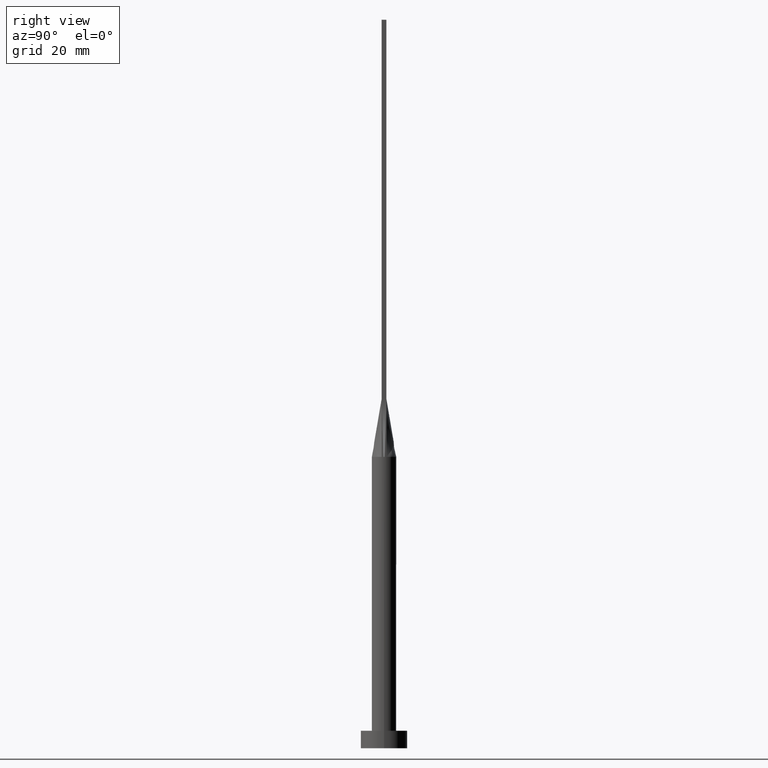
[diagram: clean part render]
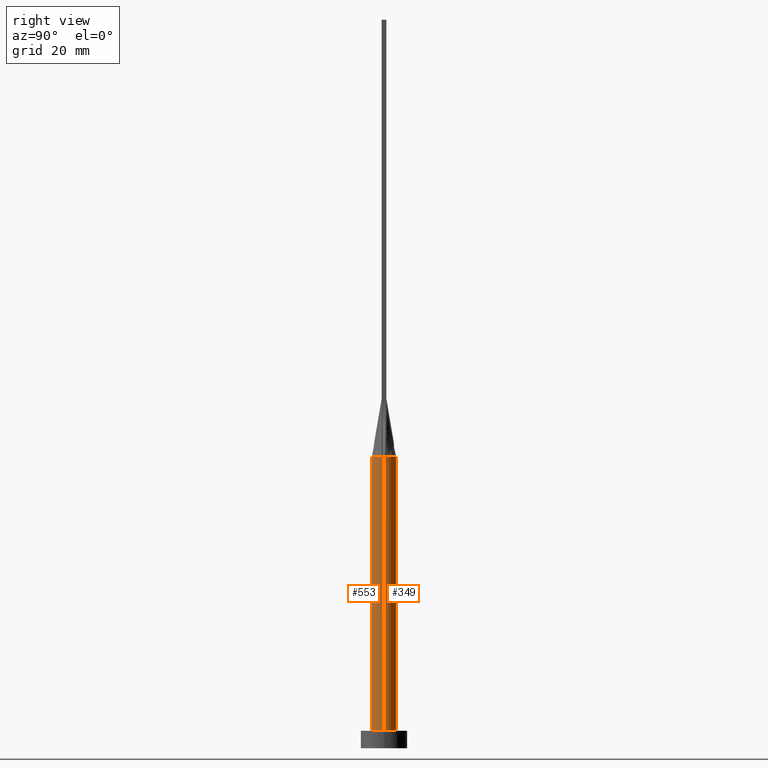
[diagram: same view with one multi-face feature highlighted, each face labeled with its STEP entity id]
A machine part, right view. The highlighted faces form ONE feature: a constant-radius fillet chain: 2 tangent blend faces with common blend radius 2.1 mm. The faces share edges in the B-rep.
Their STEP definitions:
[1] entity #553 (Cylinder):
#6 = AXIS2_PLACEMENT_3D ( 'NONE', #504, #7, #67 ) ;
#7 = DIRECTION ( 'NONE',  ( 0.000000000000000000, 0.000000000000000000, 1.000000000000000000 ) ) ;
#29 = EDGE_LOOP ( 'NONE', ( #336, #305, #171, #33, #296, #394 ) ) ;
#33 = ORIENTED_EDGE ( 'NONE', *, *, #303, .F. ) ;
#34 = VERTEX_POINT ( 'NONE', #269 ) ;
#42 = CARTESIAN_POINT ( 'NONE',  ( 2.099758441344840243, 4.928843353830161703E-16, 50.00000000000000000 ) ) ;
#67 = DIRECTION ( 'NONE',  ( 1.000000000000000000, 0.000000000000000000, 0.000000000000000000 ) ) ;
#68 = CARTESIAN_POINT ( 'NONE',  ( 2.100000000000000089, 2.571758278209441957E-16, 50.00000000000000000 ) ) ;
#102 = DIRECTION ( 'NONE',  ( -0.000000000000000000, -0.000000000000000000, -1.000000000000000000 ) ) ;
#119 = EDGE_CURVE ( 'NONE', #388, #436, #477, .T. ) ;
#126 = DIRECTION ( 'NONE',  ( 0.000000000000000000, 0.000000000000000000, 1.000000000000000000 ) ) ;
#131 = AXIS2_PLACEMENT_3D ( 'NONE', #264, #228, #186 ) ;
#137 = LINE ( 'NONE', #140, #398 ) ;
#140 = CARTESIAN_POINT ( 'NONE',  ( -2.100000000000000089, 0.000000000000000000, 50.00000000000000000 ) ) ;
#165 = VERTEX_POINT ( 'NONE', #230 ) ;
#171 = ORIENTED_EDGE ( 'NONE', *, *, #419, .F. ) ;
#186 = DIRECTION ( 'NONE',  ( 1.000000000000000000, 0.000000000000000000, 0.000000000000000000 ) ) ;
#211 = DIRECTION ( 'NONE',  ( 1.000000000000000000, -8.881784197001252323E-16, 0.000000000000000000 ) ) ;
#219 = DIRECTION ( 'NONE',  ( 1.000000000000000000, 0.000000000000000000, 0.000000000000000000 ) ) ;
#228 = DIRECTION ( 'NONE',  ( 0.000000000000000000, 0.000000000000000000, 1.000000000000000000 ) ) ;
#230 = CARTESIAN_POINT ( 'NONE',  ( -2.100000000000000089, 0.000000000000000000, 3.000000000000000000 ) ) ;
#245 = CARTESIAN_POINT ( 'NONE',  ( 2.055161022591414977, -0.4326655822303633325, 50.00000000000000000 ) ) ;
#264 = CARTESIAN_POINT ( 'NONE',  ( 0.000000000000000000, 0.000000000000000000, 50.00000000000000000 ) ) ;
#269 = CARTESIAN_POINT ( 'NONE',  ( -2.055145036631130129, -0.4326623253166036465, 50.00000000000000000 ) ) ;
#270 = VERTEX_POINT ( 'NONE', #512 ) ;
#272 = CIRCLE ( 'NONE', #131, 2.100000000000000089 ) ;
#282 = VECTOR ( 'NONE', #102, 1000.000000000000000 ) ;
#296 = ORIENTED_EDGE ( 'NONE', *, *, #392, .T. ) ;
#303 = EDGE_CURVE ( 'NONE', #270, #34, #319, .T. ) ;
#305 = ORIENTED_EDGE ( 'NONE', *, *, #557, .F. ) ;
#309 = VERTEX_POINT ( 'NONE', #245 ) ;
#318 = DIRECTION ( 'NONE',  ( -0.000000000000000000, -0.000000000000000000, -1.000000000000000000 ) ) ;
#319 = CIRCLE ( 'NONE', #6, 2.100000000000000089 ) ;
#336 = ORIENTED_EDGE ( 'NONE', *, *, #119, .F. ) ;
#340 = EDGE_CURVE ( 'NONE', #165, #436, #361, .T. ) ;
#341 = DIRECTION ( 'NONE',  ( -0.000000000000000000, -0.000000000000000000, -1.000000000000000000 ) ) ;
#357 = CARTESIAN_POINT ( 'NONE',  ( 0.000000000000000000, 0.000000000000000000, 50.00000000000000000 ) ) ;
#361 = CIRCLE ( 'NONE', #544, 2.100000000000000089 ) ;
#388 = VERTEX_POINT ( 'NONE', #42 ) ;
#392 = EDGE_CURVE ( 'NONE', #270, #165, #137, .T. ) ;
#394 = ORIENTED_EDGE ( 'NONE', *, *, #340, .T. ) ;
#398 = VECTOR ( 'NONE', #318, 1000.000000000000000 ) ;
#419 = EDGE_CURVE ( 'NONE', #34, #309, #272, .T. ) ;
#436 = VERTEX_POINT ( 'NONE', #530 ) ;
#445 = CYLINDRICAL_SURFACE ( 'NONE', #533, 2.100000000000000089 ) ;
#477 = LINE ( 'NONE', #68, #282 ) ;
#481 = AXIS2_PLACEMENT_3D ( 'NONE', #357, #126, #211 ) ;
#492 = CARTESIAN_POINT ( 'NONE',  ( 0.000000000000000000, 0.000000000000000000, 3.000000000000000000 ) ) ;
#501 = CIRCLE ( 'NONE', #481, 2.100000000000000089 ) ;
#504 = CARTESIAN_POINT ( 'NONE',  ( 0.000000000000000000, 0.000000000000000000, 50.00000000000000000 ) ) ;
#512 = CARTESIAN_POINT ( 'NONE',  ( -2.099758441344840243, -1.448674240509545331E-15, 50.00000000000000000 ) ) ;
#530 = CARTESIAN_POINT ( 'NONE',  ( 2.100000000000000089, 2.571758278209441957E-16, 3.000000000000000000 ) ) ;
#533 = AXIS2_PLACEMENT_3D ( 'NONE', #581, #341, #570 ) ;
#544 = AXIS2_PLACEMENT_3D ( 'NONE', #492, #572, #219 ) ;
#553 = ADVANCED_FACE ( 'NONE', ( #565 ), #445, .T. ) ;
#557 = EDGE_CURVE ( 'NONE', #309, #388, #501, .T. ) ;
#565 = FACE_OUTER_BOUND ( 'NONE', #29, .T. ) ;
#570 = DIRECTION ( 'NONE',  ( -1.000000000000000000, 0.000000000000000000, 0.000000000000000000 ) ) ;
#572 = DIRECTION ( 'NONE',  ( 0.000000000000000000, 0.000000000000000000, 1.000000000000000000 ) ) ;
#581 = CARTESIAN_POINT ( 'NONE',  ( 0.000000000000000000, 0.000000000000000000, 50.00000000000000000 ) ) ;
[2] entity #349 (Cylinder):
#14 = EDGE_CURVE ( 'NONE', #24, #270, #248, .T. ) ;
#24 = VERTEX_POINT ( 'NONE', #536 ) ;
#41 = ORIENTED_EDGE ( 'NONE', *, *, #554, .F. ) ;
#42 = CARTESIAN_POINT ( 'NONE',  ( 2.099758441344840243, 4.928843353830161703E-16, 50.00000000000000000 ) ) ;
#47 = ORIENTED_EDGE ( 'NONE', *, *, #119, .T. ) ;
#48 = CARTESIAN_POINT ( 'NONE',  ( 1.069497409764671003, 1.827724181718572538, 50.00000000000000711 ) ) ;
#54 = AXIS2_PLACEMENT_3D ( 'NONE', #549, #463, #506 ) ;
#68 = CARTESIAN_POINT ( 'NONE',  ( 2.100000000000000089, 2.571758278209441957E-16, 50.00000000000000000 ) ) ;
#73 = EDGE_CURVE ( 'NONE', #436, #165, #308, .T. ) ;
#90 = CARTESIAN_POINT ( 'NONE',  ( -1.769939800381045147, 1.149026496286139842, 50.00000000000000711 ) ) ;
#92 = DIRECTION ( 'NONE',  ( 1.000000000000000000, 0.000000000000000000, 0.000000000000000000 ) ) ;
#102 = DIRECTION ( 'NONE',  ( -0.000000000000000000, -0.000000000000000000, -1.000000000000000000 ) ) ;
#111 = CARTESIAN_POINT ( 'NONE',  ( 0.000000000000000000, 0.000000000000000000, 50.00000000000000000 ) ) ;
#119 = EDGE_CURVE ( 'NONE', #388, #436, #477, .T. ) ;
#133 = CYLINDRICAL_SURFACE ( 'NONE', #283, 2.100000000000000089 ) ;
#135 = DIRECTION ( 'NONE',  ( 1.000000000000000000, 0.000000000000000000, 0.000000000000000000 ) ) ;
#137 = LINE ( 'NONE', #140, #398 ) ;
#138 = CARTESIAN_POINT ( 'NONE',  ( 0.000000000000000000, 0.000000000000000000, 50.00000000000000000 ) ) ;
#140 = CARTESIAN_POINT ( 'NONE',  ( -2.100000000000000089, 0.000000000000000000, 50.00000000000000000 ) ) ;
#145 = CARTESIAN_POINT ( 'NONE',  ( -0.2839879338753505955, 2.100000000000000533, 50.00000000000000711 ) ) ;
#165 = VERTEX_POINT ( 'NONE', #230 ) ;
#167 = AXIS2_PLACEMENT_3D ( 'NONE', #138, #576, #92 ) ;
#168 = VERTEX_POINT ( 'NONE', #194 ) ;
#182 = CARTESIAN_POINT ( 'NONE',  ( -1.069497409764671003, 1.827724181718571872, 50.00000000000000711 ) ) ;
#194 = CARTESIAN_POINT ( 'NONE',  ( 2.055132260641998609, 0.4326595789354660826, 50.00000000000000000 ) ) ;
#216 = CARTESIAN_POINT ( 'NONE',  ( 0.000000000000000000, 0.000000000000000000, 50.00000000000000000 ) ) ;
#222 = ORIENTED_EDGE ( 'NONE', *, *, #14, .F. ) ;
#226 = CARTESIAN_POINT ( 'NONE',  ( 0.5670887265440297531, 2.040296735810463780, 50.00000000000000711 ) ) ;
#230 = CARTESIAN_POINT ( 'NONE',  ( -2.100000000000000089, 0.000000000000000000, 3.000000000000000000 ) ) ;
#240 = CIRCLE ( 'NONE', #167, 2.100000000000000089 ) ;
#248 = CIRCLE ( 'NONE', #300, 2.100000000000000089 ) ;
#266 = DIRECTION ( 'NONE',  ( 0.000000000000000000, 0.000000000000000000, 1.000000000000000000 ) ) ;
#270 = VERTEX_POINT ( 'NONE', #512 ) ;
#282 = VECTOR ( 'NONE', #102, 1000.000000000000000 ) ;
#283 = AXIS2_PLACEMENT_3D ( 'NONE', #216, #310, #575 ) ;
#300 = AXIS2_PLACEMENT_3D ( 'NONE', #111, #266, #135 ) ;
#308 = CIRCLE ( 'NONE', #54, 2.100000000000000089 ) ;
#310 = DIRECTION ( 'NONE',  ( -0.000000000000000000, -0.000000000000000000, -1.000000000000000000 ) ) ;
#313 = CARTESIAN_POINT ( 'NONE',  ( 1.288188016604684183, 1.676316068528189041, 50.00000000000000711 ) ) ;
#316 = CARTESIAN_POINT ( 'NONE',  ( 1.960396204527856900, 0.7808940436533436946, 50.00000000000000711 ) ) ;
#318 = DIRECTION ( 'NONE',  ( -0.000000000000000000, -0.000000000000000000, -1.000000000000000000 ) ) ;
#335 = ORIENTED_EDGE ( 'NONE', *, *, #371, .F. ) ;
#337 = ORIENTED_EDGE ( 'NONE', *, *, #73, .T. ) ;
#348 = CARTESIAN_POINT ( 'NONE',  ( 1.638039177766652754, 1.336522195786985057, 50.00000000000002132 ) ) ;
#349 = ADVANCED_FACE ( 'NONE', ( #400 ), #133, .T. ) ;
#356 = CARTESIAN_POINT ( 'NONE',  ( -1.288188016604684183, 1.676316068528189263, 50.00000000000002132 ) ) ;
#358 = CARTESIAN_POINT ( 'NONE',  ( -0.5670887265440298641, 2.040296735810464668, 50.00000000000000000 ) ) ;
#371 = EDGE_CURVE ( 'NONE', #168, #24, #431, .T. ) ;
#388 = VERTEX_POINT ( 'NONE', #42 ) ;
#392 = EDGE_CURVE ( 'NONE', #270, #165, #137, .T. ) ;
#398 = VECTOR ( 'NONE', #318, 1000.000000000000000 ) ;
#399 = ORIENTED_EDGE ( 'NONE', *, *, #392, .F. ) ;
#400 = FACE_OUTER_BOUND ( 'NONE', #539, .T. ) ;
#403 = CARTESIAN_POINT ( 'NONE',  ( -2.055148177435248691, 0.4326628259079252081, 50.00000000000000000 ) ) ;
#405 = CARTESIAN_POINT ( 'NONE',  ( 1.769939800381044259, 1.149026496286139620, 49.99999999999999289 ) ) ;
#431 = B_SPLINE_CURVE_WITH_KNOTS ( 'NONE', 3,
 ( #534, #499, #316, #405, #348, #313, #48, #226, #580, #145, #358, #182, #356, #495, #90, #456, #444, #403 ),
 .UNSPECIFIED., .F., .F.,
 ( 4, 2, 2, 2, 2, 2, 2, 2, 4 ),
 ( 0.000000000000000000, 0.1250000000000000000, 0.2500000000000000000, 0.3750000000000000000, 0.5000000000000000000, 0.6250000000000000000, 0.7500000000000000000, 0.8750000000000000000, 1.000000000000000000 ),
 .UNSPECIFIED. ) ;
#436 = VERTEX_POINT ( 'NONE', #530 ) ;
#444 = CARTESIAN_POINT ( 'NONE',  ( -2.019676033883313959, 0.6001949545017503107, 50.00000000000000711 ) ) ;
#456 = CARTESIAN_POINT ( 'NONE',  ( -1.960396204527856456, 0.7808940436533434726, 50.00000000000000711 ) ) ;
#463 = DIRECTION ( 'NONE',  ( 0.000000000000000000, 0.000000000000000000, 1.000000000000000000 ) ) ;
#477 = LINE ( 'NONE', #68, #282 ) ;
#495 = CARTESIAN_POINT ( 'NONE',  ( -1.638039177766652976, 1.336522195786985057, 50.00000000000001421 ) ) ;
#499 = CARTESIAN_POINT ( 'NONE',  ( 2.019676033883313515, 0.6001949545017501997, 50.00000000000000711 ) ) ;
#506 = DIRECTION ( 'NONE',  ( 1.000000000000000000, 0.000000000000000000, 0.000000000000000000 ) ) ;
#512 = CARTESIAN_POINT ( 'NONE',  ( -2.099758441344840243, -1.448674240509545331E-15, 50.00000000000000000 ) ) ;
#530 = CARTESIAN_POINT ( 'NONE',  ( 2.100000000000000089, 2.571758278209441957E-16, 3.000000000000000000 ) ) ;
#534 = CARTESIAN_POINT ( 'NONE',  ( 2.055132260641998609, 0.4326595789354660826, 50.00000000000000000 ) ) ;
#536 = CARTESIAN_POINT ( 'NONE',  ( -2.055148177435248691, 0.4326628259079252081, 50.00000000000000000 ) ) ;
#539 = EDGE_LOOP ( 'NONE', ( #41, #47, #337, #399, #222, #335 ) ) ;
#549 = CARTESIAN_POINT ( 'NONE',  ( 0.000000000000000000, 0.000000000000000000, 3.000000000000000000 ) ) ;
#554 = EDGE_CURVE ( 'NONE', #388, #168, #240, .T. ) ;
#575 = DIRECTION ( 'NONE',  ( -1.000000000000000000, 0.000000000000000000, 0.000000000000000000 ) ) ;
#576 = DIRECTION ( 'NONE',  ( 0.000000000000000000, 0.000000000000000000, 1.000000000000000000 ) ) ;
#580 = CARTESIAN_POINT ( 'NONE',  ( 0.2839879338753505955, 2.100000000000000533, 50.00000000000000711 ) ) ;